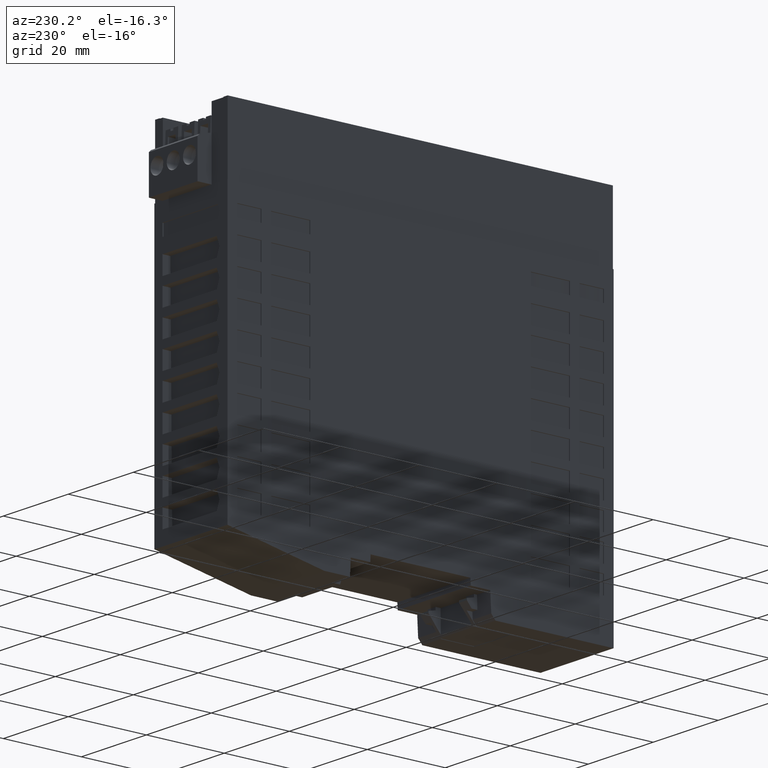
[diagram: clean part render]
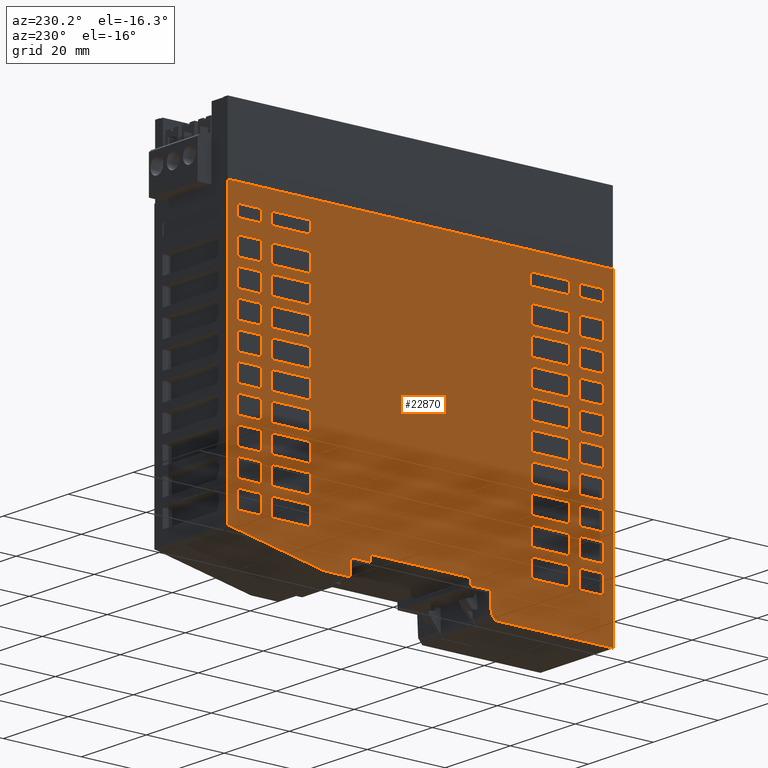
[diagram: same view with one face highlighted and labeled with its STEP entity id]
A machine part, auxiliary view. The second image highlights one B-rep face of the part: STEP entity #22870.
In plain terms, the highlighted planar face has unit normal (-1, 0, 0).
Its self-contained STEP definition (entity closure, byte-faithful):
#8080=CARTESIAN_POINT('',(11.25,71.8,-49.5));
#8090=DIRECTION('',(1.,0.,-0.));
#8100=DIRECTION('',(0.,0.,1.));
#8110=AXIS2_PLACEMENT_3D('',#8080,#8090,#8100);
#8120=PLANE('',#8110);
#8130=CARTESIAN_POINT('',(11.25,4.34999999999999,0.));
#8140=DIRECTION('',(0.,0.,-1.));
#8150=VECTOR('',#8140,1.);
#8160=LINE('',#8130,#8150);
#8170=CARTESIAN_POINT('',(11.25,4.34999999999999,47.));
#8180=VERTEX_POINT('',#8170);
#8190=CARTESIAN_POINT('',(11.25,4.34999999999999,40.8));
#8200=VERTEX_POINT('',#8190);
#8210=EDGE_CURVE('',#8180,#8200,#8160,.T.);
#8220=ORIENTED_EDGE('',*,*,#8210,.F.);
#8230=CARTESIAN_POINT('',(11.25,71.8,40.8));
#8240=DIRECTION('',(0.,1.,3.70920615068742E-64));
#8250=VECTOR('',#8240,1.);
#8260=LINE('',#8230,#8250);
#8270=CARTESIAN_POINT('',(11.25,8.84999999999999,40.8));
#8280=VERTEX_POINT('',#8270);
#8290=EDGE_CURVE('',#8200,#8280,#8260,.T.);
#8300=ORIENTED_EDGE('',*,*,#8290,.F.);
#8310=CARTESIAN_POINT('',(11.25,8.84999999999999,0.));
#8320=DIRECTION('',(0.,0.,1.));
#8330=VECTOR('',#8320,1.);
#8340=LINE('',#8310,#8330);
#8350=CARTESIAN_POINT('',(11.25,8.84999999999999,47.));
#8360=VERTEX_POINT('',#8350);
#8370=EDGE_CURVE('',#8280,#8360,#8340,.T.);
#8380=ORIENTED_EDGE('',*,*,#8370,.F.);
#8390=CARTESIAN_POINT('',(11.25,71.8,47.));
#8400=DIRECTION('',(0.,-1.,-3.70920615068742E-64));
#8410=VECTOR('',#8400,1.);
#8420=LINE('',#8390,#8410);
#8430=EDGE_CURVE('',#8360,#8180,#8420,.T.);
#8440=ORIENTED_EDGE('',*,*,#8430,.F.);
#8450=EDGE_LOOP('',(#8440,#8380,#8300,#8220));
#8460=FACE_BOUND('',#8450,.T.);
#8470=CARTESIAN_POINT('',(11.25,71.8,-28.3));
#8480=DIRECTION('',(0.,-1.,-3.70920615068742E-64));
#8490=VECTOR('',#8480,1.);
#8500=LINE('',#8470,#8490);
#8510=CARTESIAN_POINT('',(11.25,47.85,-28.3));
#8520=VERTEX_POINT('',#8510);
#8530=CARTESIAN_POINT('',(11.25,43.35,-28.3));
#8540=VERTEX_POINT('',#8530);
#8550=EDGE_CURVE('',#8520,#8540,#8500,.T.);
#8560=ORIENTED_EDGE('',*,*,#8550,.F.);
#8570=CARTESIAN_POINT('',(11.25,43.35,0.));
#8580=DIRECTION('',(0.,0.,-1.));
#8590=VECTOR('',#8580,1.);
#8600=LINE('',#8570,#8590);
#8610=CARTESIAN_POINT('',(11.25,43.35,-38.3));
#8620=VERTEX_POINT('',#8610);
#8630=EDGE_CURVE('',#8540,#8620,#8600,.T.);
#8640=ORIENTED_EDGE('',*,*,#8630,.F.);
#8650=CARTESIAN_POINT('',(11.25,71.8,-38.3));
#8660=DIRECTION('',(0.,1.,3.70920615068742E-64));
#8670=VECTOR('',#8660,1.);
#8680=LINE('',#8650,#8670);
#8690=CARTESIAN_POINT('',(11.25,47.85,-38.3));
#8700=VERTEX_POINT('',#8690);
#8710=EDGE_CURVE('',#8620,#8700,#8680,.T.);
#8720=ORIENTED_EDGE('',*,*,#8710,.F.);
#8730=CARTESIAN_POINT('',(11.25,47.85,0.));
#8740=DIRECTION('',(0.,0.,1.));
#8750=VECTOR('',#8740,1.);
#8760=LINE('',#8730,#8750);
#8770=EDGE_CURVE('',#8700,#8520,#8760,.T.);
#8780=ORIENTED_EDGE('',*,*,#8770,.F.);
#8790=EDGE_LOOP('',(#8780,#8720,#8640,#8560));
#8800=FACE_BOUND('',#8790,.T.);
#8810=CARTESIAN_POINT('',(11.25,36.85,0.));
#8820=DIRECTION('',(0.,0.,-1.));
#8830=VECTOR('',#8820,1.);
#8840=LINE('',#8810,#8830);
#8850=CARTESIAN_POINT('',(11.25,36.85,47.));
#8860=VERTEX_POINT('',#8850);
#8870=CARTESIAN_POINT('',(11.25,36.85,40.8));
#8880=VERTEX_POINT('',#8870);
#8890=EDGE_CURVE('',#8860,#8880,#8840,.T.);
#8900=ORIENTED_EDGE('',*,*,#8890,.F.);
#8910=CARTESIAN_POINT('',(11.25,71.8,40.8));
#8920=DIRECTION('',(0.,1.,3.70920615068742E-64));
#8930=VECTOR('',#8920,1.);
#8940=LINE('',#8910,#8930);
#8950=CARTESIAN_POINT('',(11.25,41.35,40.8));
#8960=VERTEX_POINT('',#8950);
#8970=EDGE_CURVE('',#8880,#8960,#8940,.T.);
#8980=ORIENTED_EDGE('',*,*,#8970,.F.);
#8990=CARTESIAN_POINT('',(11.25,41.35,0.));
#9000=DIRECTION('',(0.,0.,1.));
#9010=VECTOR('',#9000,1.);
#9020=LINE('',#8990,#9010);
#9030=CARTESIAN_POINT('',(11.25,41.35,47.));
#9040=VERTEX_POINT('',#9030);
#9050=EDGE_CURVE('',#8960,#9040,#9020,.T.);
#9060=ORIENTED_EDGE('',*,*,#9050,.F.);
#9070=CARTESIAN_POINT('',(11.25,71.8,47.));
#9080=DIRECTION('',(0.,-1.,-3.70920615068742E-64));
#9090=VECTOR('',#9080,1.);
#9100=LINE('',#9070,#9090);
#9110=EDGE_CURVE('',#9040,#8860,#9100,.T.);
#9120=ORIENTED_EDGE('',*,*,#9110,.F.);
#9130=EDGE_LOOP('',(#9120,#9060,#8980,#8900));
#9140=FACE_BOUND('',#9130,.T.);
#9150=CARTESIAN_POINT('',(11.25,71.8,28.3));
#9160=DIRECTION('',(0.,1.,3.70920615068742E-64));
#9170=VECTOR('',#9160,1.);
#9180=LINE('',#9150,#9170);
#9190=CARTESIAN_POINT('',(11.25,17.35,28.3));
#9200=VERTEX_POINT('',#9190);
#9210=CARTESIAN_POINT('',(11.25,21.85,28.3));
#9220=VERTEX_POINT('',#9210);
#9230=EDGE_CURVE('',#9200,#9220,#9180,.T.);
#9240=ORIENTED_EDGE('',*,*,#9230,.F.);
#9250=CARTESIAN_POINT('',(11.25,21.85,0.));
#9260=DIRECTION('',(0.,0.,1.));
#9270=VECTOR('',#9260,1.);
#9280=LINE('',#9250,#9270);
#9290=CARTESIAN_POINT('',(11.25,21.85,38.3));
#9300=VERTEX_POINT('',#9290);
#9310=EDGE_CURVE('',#9220,#9300,#9280,.T.);
#9320=ORIENTED_EDGE('',*,*,#9310,.F.);
#9330=CARTESIAN_POINT('',(11.25,71.8,38.3));
#9340=DIRECTION('',(0.,-1.,-3.70920615068742E-64));
#9350=VECTOR('',#9340,1.);
#9360=LINE('',#9330,#9350);
#9370=CARTESIAN_POINT('',(11.25,17.35,38.3));
#9380=VERTEX_POINT('',#9370);
#9390=EDGE_CURVE('',#9300,#9380,#9360,.T.);
#9400=ORIENTED_EDGE('',*,*,#9390,.F.);
#9410=CARTESIAN_POINT('',(11.25,17.35,0.));
#9420=DIRECTION('',(0.,0.,-1.));
#9430=VECTOR('',#9420,1.);
#9440=LINE('',#9410,#9430);
#9450=EDGE_CURVE('',#9380,#9200,#9440,.T.);
#9460=ORIENTED_EDGE('',*,*,#9450,.F.);
#9470=EDGE_LOOP('',(#9460,#9400,#9320,#9240));
#9480=FACE_BOUND('',#9470,.T.);
#9490=CARTESIAN_POINT('',(11.25,71.8,28.3));
#9500=DIRECTION('',(0.,1.,3.70920615068742E-64));
#9510=VECTOR('',#9500,1.);
#9520=LINE('',#9490,#9510);
#9530=CARTESIAN_POINT('',(11.25,23.85,28.3));
#9540=VERTEX_POINT('',#9530);
#9550=CARTESIAN_POINT('',(11.25,28.35,28.3));
#9560=VERTEX_POINT('',#9550);
#9570=EDGE_CURVE('',#9540,#9560,#9520,.T.);
#9580=ORIENTED_EDGE('',*,*,#9570,.F.);
#9590=CARTESIAN_POINT('',(11.25,28.35,0.));
#9600=DIRECTION('',(0.,0.,1.));
#9610=VECTOR('',#9600,1.);
#9620=LINE('',#9590,#9610);
#9630=CARTESIAN_POINT('',(11.25,28.35,38.3));
#9640=VERTEX_POINT('',#9630);
#9650=EDGE_CURVE('',#9560,#9640,#9620,.T.);
#9660=ORIENTED_EDGE('',*,*,#9650,.F.);
#9670=CARTESIAN_POINT('',(11.25,71.8,38.3));
#9680=DIRECTION('',(0.,-1.,-3.70920615068742E-64));
#9690=VECTOR('',#9680,1.);
#9700=LINE('',#9670,#9690);
#9710=CARTESIAN_POINT('',(11.25,23.85,38.3));
#9720=VERTEX_POINT('',#9710);
#9730=EDGE_CURVE('',#9640,#9720,#9700,.T.);
#9740=ORIENTED_EDGE('',*,*,#9730,.F.);
#9750=CARTESIAN_POINT('',(11.25,23.85,0.));
#9760=DIRECTION('',(0.,0.,-1.));
#9770=VECTOR('',#9760,1.);
#9780=LINE('',#9750,#9770);
#9790=EDGE_CURVE('',#9720,#9540,#9780,.T.);
#9800=ORIENTED_EDGE('',*,*,#9790,.F.);
#9810=EDGE_LOOP('',(#9800,#9740,#9660,#9580));
#9820=FACE_BOUND('',#9810,.T.);
#9830=CARTESIAN_POINT('',(11.25,71.8,40.8));
#9840=DIRECTION('',(0.,1.,3.70920615068742E-64));
#9850=VECTOR('',#9840,1.);
#9860=LINE('',#9830,#9850);
#9870=CARTESIAN_POINT('',(11.25,30.35,40.8));
#9880=VERTEX_POINT('',#9870);
#9890=CARTESIAN_POINT('',(11.25,34.85,40.8));
#9900=VERTEX_POINT('',#9890);
#9910=EDGE_CURVE('',#9880,#9900,#9860,.T.);
#9920=ORIENTED_EDGE('',*,*,#9910,.F.);
#9930=CARTESIAN_POINT('',(11.25,34.85,0.));
#9940=DIRECTION('',(0.,0.,1.));
#9950=VECTOR('',#9940,1.);
#9960=LINE('',#9930,#9950);
#9970=CARTESIAN_POINT('',(11.25,34.85,47.));
#9980=VERTEX_POINT('',#9970);
#9990=EDGE_CURVE('',#9900,#9980,#9960,.T.);
#10000=ORIENTED_EDGE('',*,*,#9990,.F.);
#10010=CARTESIAN_POINT('',(11.25,71.8,47.));
#10020=DIRECTION('',(0.,-1.,-3.70920615068742E-64));
#10030=VECTOR('',#10020,1.);
#10040=LINE('',#10010,#10030);
#10050=CARTESIAN_POINT('',(11.25,30.35,47.));
#10060=VERTEX_POINT('',#10050);
#10070=EDGE_CURVE('',#9980,#10060,#10040,.T.);
#10080=ORIENTED_EDGE('',*,*,#10070,.F.);
#10090=CARTESIAN_POINT('',(11.25,30.35,0.));
#10100=DIRECTION('',(0.,0.,-1.));
#10110=VECTOR('',#10100,1.);
#10120=LINE('',#10090,#10110);
#10130=EDGE_CURVE('',#10060,#9880,#10120,.T.);
#10140=ORIENTED_EDGE('',*,*,#10130,.F.);
#10150=EDGE_LOOP('',(#10140,#10080,#10000,#9920));
#10160=FACE_BOUND('',#10150,.T.);
#10170=CARTESIAN_POINT('',(11.25,67.3,0.));
#10180=DIRECTION('',(0.,0.,1.));
#10190=VECTOR('',#10180,1.);
#10200=LINE('',#10170,#10190);
#10210=CARTESIAN_POINT('',(11.25,67.3,-47.));
#10220=VERTEX_POINT('',#10210);
#10230=CARTESIAN_POINT('',(11.25,67.3,-40.8));
#10240=VERTEX_POINT('',#10230);
#10250=EDGE_CURVE('',#10220,#10240,#10200,.T.);
#10260=ORIENTED_EDGE('',*,*,#10250,.F.);
#10270=CARTESIAN_POINT('',(11.25,71.8,-40.8));
#10280=DIRECTION('',(0.,-1.,-3.70920615068742E-64));
#10290=VECTOR('',#10280,1.);
#10300=LINE('',#10270,#10290);
#10310=CARTESIAN_POINT('',(11.25,64.4,-40.8));
#10320=VERTEX_POINT('',#10310);
#10330=EDGE_CURVE('',#10240,#10320,#10300,.T.);
#10340=ORIENTED_EDGE('',*,*,#10330,.F.);
#10350=CARTESIAN_POINT('',(11.25,64.4,0.));
#10360=DIRECTION('',(0.,0.,-1.));
#10370=VECTOR('',#10360,1.);
#10380=LINE('',#10350,#10370);
#10390=CARTESIAN_POINT('',(11.25,64.4,-47.));
#10400=VERTEX_POINT('',#10390);
#10410=EDGE_CURVE('',#10320,#10400,#10380,.T.);
#10420=ORIENTED_EDGE('',*,*,#10410,.F.);
#10430=CARTESIAN_POINT('',(11.25,71.8,-47.));
#10440=DIRECTION('',(0.,1.,3.70920615068742E-64));
#10450=VECTOR('',#10440,1.);
#10460=LINE('',#10430,#10450);
#10470=EDGE_CURVE('',#10400,#10220,#10460,.T.);
#10480=ORIENTED_EDGE('',*,*,#10470,.F.);
#10490=EDGE_LOOP('',(#10480,#10420,#10340,#10260));
#10500=FACE_BOUND('',#10490,.T.);
#10510=CARTESIAN_POINT('',(11.25,71.8,28.3));
#10520=DIRECTION('',(0.,1.,3.70920615068742E-64));
#10530=VECTOR('',#10520,1.);
#10540=LINE('',#10510,#10530);
#10550=CARTESIAN_POINT('',(11.25,36.85,28.3));
#10560=VERTEX_POINT('',#10550);
#10570=CARTESIAN_POINT('',(11.25,41.35,28.3));
#10580=VERTEX_POINT('',#10570);
#10590=EDGE_CURVE('',#10560,#10580,#10540,.T.);
#10600=ORIENTED_EDGE('',*,*,#10590,.F.);
#10610=CARTESIAN_POINT('',(11.25,41.35,0.));
#10620=DIRECTION('',(0.,0.,1.));
#10630=VECTOR('',#10620,1.);
#10640=LINE('',#10610,#10630);
#10650=CARTESIAN_POINT('',(11.25,41.35,38.3));
#10660=VERTEX_POINT('',#10650);
#10670=EDGE_CURVE('',#10580,#10660,#10640,.T.);
#10680=ORIENTED_EDGE('',*,*,#10670,.F.);
#10690=CARTESIAN_POINT('',(11.25,71.8,38.3));
#10700=DIRECTION('',(0.,-1.,-3.70920615068742E-64));
#10710=VECTOR('',#10700,1.);
#10720=LINE('',#10690,#10710);
#10730=CARTESIAN_POINT('',(11.25,36.85,38.3));
#10740=VERTEX_POINT('',#10730);
#10750=EDGE_CURVE('',#10660,#10740,#10720,.T.);
#10760=ORIENTED_EDGE('',*,*,#10750,.F.);
#10770=CARTESIAN_POINT('',(11.25,36.85,0.));
#10780=DIRECTION('',(0.,0.,-1.));
#10790=VECTOR('',#10780,1.);
#10800=LINE('',#10770,#10790);
#10810=EDGE_CURVE('',#10740,#10560,#10800,.T.);
#10820=ORIENTED_EDGE('',*,*,#10810,.F.);
#10830=EDGE_LOOP('',(#10820,#10760,#10680,#10600));
#10840=FACE_BOUND('',#10830,.T.);
#10850=CARTESIAN_POINT('',(11.25,71.8,-38.3));
#10860=DIRECTION('',(0.,1.,3.70920615068742E-64));
#10870=VECTOR('',#10860,1.);
#10880=LINE('',#10850,#10870);
#10890=CARTESIAN_POINT('',(11.25,56.35,-38.3));
#10900=VERTEX_POINT('',#10890);
#10910=CARTESIAN_POINT('',(11.25,60.85,-38.3));
#10920=VERTEX_POINT('',#10910);
#10930=EDGE_CURVE('',#10900,#10920,#10880,.T.);
#10940=ORIENTED_EDGE('',*,*,#10930,.F.);
#10950=CARTESIAN_POINT('',(11.25,60.85,0.));
#10960=DIRECTION('',(0.,0.,1.));
#10970=VECTOR('',#10960,1.);
#10980=LINE('',#10950,#10970);
#10990=CARTESIAN_POINT('',(11.25,60.85,-28.3));
#11000=VERTEX_POINT('',#10990);
#11010=EDGE_CURVE('',#10920,#11000,#10980,.T.);
#11020=ORIENTED_EDGE('',*,*,#11010,.F.);
#11030=CARTESIAN_POINT('',(11.25,71.8,-28.3));
#11040=DIRECTION('',(0.,-1.,-3.70920615068742E-64));
#11050=VECTOR('',#11040,1.);
#11060=LINE('',#11030,#11050);
#11070=CARTESIAN_POINT('',(11.25,56.35,-28.3));
#11080=VERTEX_POINT('',#11070);
#11090=EDGE_CURVE('',#11000,#11080,#11060,.T.);
#11100=ORIENTED_EDGE('',*,*,#11090,.F.);
#11110=CARTESIAN_POINT('',(11.25,56.35,0.));
#11120=DIRECTION('',(0.,0.,-1.));
#11130=VECTOR('',#11120,1.);
#11140=LINE('',#11110,#11130);
#11150=EDGE_CURVE('',#11080,#10900,#11140,.T.);
#11160=ORIENTED_EDGE('',*,*,#11150,.F.);
#11170=EDGE_LOOP('',(#11160,#11100,#11020,#10940));
#11180=FACE_BOUND('',#11170,.T.);
#11190=CARTESIAN_POINT('',(11.25,34.85,0.));
#11200=DIRECTION('',(0.,0.,1.));
#11210=VECTOR('',#11200,1.);
#11220=LINE('',#11190,#11210);
#11230=CARTESIAN_POINT('',(11.25,34.85,-47.));
#11240=VERTEX_POINT('',#11230);
#11250=CARTESIAN_POINT('',(11.25,34.85,-40.8));
#11260=VERTEX_POINT('',#11250);
#11270=EDGE_CURVE('',#11240,#11260,#11220,.T.);
#11280=ORIENTED_EDGE('',*,*,#11270,.F.);
#11290=CARTESIAN_POINT('',(11.25,71.8,-40.8));
#11300=DIRECTION('',(0.,-1.,-3.70920615068742E-64));
#11310=VECTOR('',#11300,1.);
#11320=LINE('',#11290,#11310);
#11330=CARTESIAN_POINT('',(11.25,30.35,-40.8));
#11340=VERTEX_POINT('',#11330);
#11350=EDGE_CURVE('',#11260,#11340,#11320,.T.);
#11360=ORIENTED_EDGE('',*,*,#11350,.F.);
#11370=CARTESIAN_POINT('',(11.25,30.35,0.));
#11380=DIRECTION('',(0.,0.,-1.));
#11390=VECTOR('',#11380,1.);
#11400=LINE('',#11370,#11390);
#11410=CARTESIAN_POINT('',(11.25,30.35,-47.));
#11420=VERTEX_POINT('',#11410);
#11430=EDGE_CURVE('',#11340,#11420,#11400,.T.);
#11440=ORIENTED_EDGE('',*,*,#11430,.F.);
#11450=CARTESIAN_POINT('',(11.25,71.8,-47.));
#11460=DIRECTION('',(0.,1.,3.70920615068742E-64));
#11470=VECTOR('',#11460,1.);
#11480=LINE('',#11450,#11470);
#11490=EDGE_CURVE('',#11420,#11240,#11480,.T.);
#11500=ORIENTED_EDGE('',*,*,#11490,.F.);
#11510=EDGE_LOOP('',(#11500,#11440,#11360,#11280));
#11520=FACE_BOUND('',#11510,.T.);
#11530=CARTESIAN_POINT('',(11.25,71.8,47.));
#11540=DIRECTION('',(0.,-1.,-3.70920615068742E-64));
#11550=VECTOR('',#11540,1.);
#11560=LINE('',#11530,#11550);
#11570=CARTESIAN_POINT('',(11.25,47.85,47.));
#11580=VERTEX_POINT('',#11570);
#11590=CARTESIAN_POINT('',(11.25,43.35,47.));
#11600=VERTEX_POINT('',#11590);
#11610=EDGE_CURVE('',#11580,#11600,#11560,.T.);
#11620=ORIENTED_EDGE('',*,*,#11610,.F.);
#11630=CARTESIAN_POINT('',(11.25,43.35,0.));
#11640=DIRECTION('',(0.,0.,-1.));
#11650=VECTOR('',#11640,1.);
#11660=LINE('',#11630,#11650);
#11670=CARTESIAN_POINT('',(11.25,43.35,40.8));
#11680=VERTEX_POINT('',#11670);
#11690=EDGE_CURVE('',#11600,#11680,#11660,.T.);
#11700=ORIENTED_EDGE('',*,*,#11690,.F.);
#11710=CARTESIAN_POINT('',(11.25,71.8,40.8));
#11720=DIRECTION('',(0.,1.,3.70920615068742E-64));
#11730=VECTOR('',#11720,1.);
#11740=LINE('',#11710,#11730);
#11750=CARTESIAN_POINT('',(11.25,47.85,40.8));
#11760=VERTEX_POINT('',#11750);
#11770=EDGE_CURVE('',#11680,#11760,#11740,.T.);
#11780=ORIENTED_EDGE('',*,*,#11770,.F.);
#11790=CARTESIAN_POINT('',(11.25,47.85,0.));
#11800=DIRECTION('',(0.,0.,1.));
#11810=VECTOR('',#11800,1.);
#11820=LINE('',#11790,#11810);
#11830=EDGE_CURVE('',#11760,#11580,#11820,.T.);
#11840=ORIENTED_EDGE('',*,*,#11830,.F.);
#11850=EDGE_LOOP('',(#11840,#11780,#11700,#11620));
#11860=FACE_BOUND('',#11850,.T.);
#11870=CARTESIAN_POINT('',(11.25,71.8,28.3));
#11880=DIRECTION('',(0.,1.,3.70920615068742E-64));
#11890=VECTOR('',#11880,1.);
#11900=LINE('',#11870,#11890);
#11910=CARTESIAN_POINT('',(11.25,4.34999999999999,28.3));
#11920=VERTEX_POINT('',#11910);
#11930=CARTESIAN_POINT('',(11.25,8.84999999999999,28.3));
#11940=VERTEX_POINT('',#11930);
#11950=EDGE_CURVE('',#11920,#11940,#11900,.T.);
#11960=ORIENTED_EDGE('',*,*,#11950,.F.);
#11970=CARTESIAN_POINT('',(11.25,8.84999999999999,0.));
#11980=DIRECTION('',(0.,0.,1.));
#11990=VECTOR('',#11980,1.);
#12000=LINE('',#11970,#11990);
#12010=CARTESIAN_POINT('',(11.25,8.84999999999999,38.3));
#12020=VERTEX_POINT('',#12010);
#12030=EDGE_CURVE('',#11940,#12020,#12000,.T.);
#12040=ORIENTED_EDGE('',*,*,#12030,.F.);
#12050=CARTESIAN_POINT('',(11.25,71.8,38.3));
#12060=DIRECTION('',(0.,-1.,-3.70920615068742E-64));
#12070=VECTOR('',#12060,1.);
#12080=LINE('',#12050,#12070);
#12090=CARTESIAN_POINT('',(11.25,4.34999999999999,38.3));
#12100=VERTEX_POINT('',#12090);
#12110=EDGE_CURVE('',#12020,#12100,#12080,.T.);
#12120=ORIENTED_EDGE('',*,*,#12110,.F.);
#12130=CARTESIAN_POINT('',(11.25,4.34999999999999,0.));
#12140=DIRECTION('',(0.,0.,-1.));
#12150=VECTOR('',#12140,1.);
#12160=LINE('',#12130,#12150);
#12170=EDGE_CURVE('',#12100,#11920,#12160,.T.);
#12180=ORIENTED_EDGE('',*,*,#12170,.F.);
#12190=EDGE_LOOP('',(#12180,#12120,#12040,#11960));
#12200=FACE_BOUND('',#12190,.T.);
#12210=CARTESIAN_POINT('',(11.25,71.8,-47.));
#12220=DIRECTION('',(0.,1.,3.70920615068742E-64));
#12230=VECTOR('',#12220,1.);
#12240=LINE('',#12210,#12230);
#12250=CARTESIAN_POINT('',(11.25,36.85,-47.));
#12260=VERTEX_POINT('',#12250);
#12270=CARTESIAN_POINT('',(11.25,41.35,-47.));
#12280=VERTEX_POINT('',#12270);
#12290=EDGE_CURVE('',#12260,#12280,#12240,.T.);
#12300=ORIENTED_EDGE('',*,*,#12290,.F.);
#12310=CARTESIAN_POINT('',(11.25,41.35,0.));
#12320=DIRECTION('',(0.,0.,1.));
#12330=VECTOR('',#12320,1.);
#12340=LINE('',#12310,#12330);
#12350=CARTESIAN_POINT('',(11.25,41.35,-40.8));
#12360=VERTEX_POINT('',#12350);
#12370=EDGE_CURVE('',#12280,#12360,#12340,.T.);
#12380=ORIENTED_EDGE('',*,*,#12370,.F.);
#12390=CARTESIAN_POINT('',(11.25,71.8,-40.8));
#12400=DIRECTION('',(0.,-1.,-3.70920615068742E-64));
#12410=VECTOR('',#12400,1.);
#12420=LINE('',#12390,#12410);
#12430=CARTESIAN_POINT('',(11.25,36.85,-40.8));
#12440=VERTEX_POINT('',#12430);
#12450=EDGE_CURVE('',#12360,#12440,#12420,.T.);
#12460=ORIENTED_EDGE('',*,*,#12450,.F.);
#12470=CARTESIAN_POINT('',(11.25,36.85,0.));
#12480=DIRECTION('',(0.,0.,-1.));
#12490=VECTOR('',#12480,1.);
#12500=LINE('',#12470,#12490);
#12510=EDGE_CURVE('',#12440,#12260,#12500,.T.);
#12520=ORIENTED_EDGE('',*,*,#12510,.F.);
#12530=EDGE_LOOP('',(#12520,#12460,#12380,#12300));
#12540=FACE_BOUND('',#12530,.T.);
#12550=CARTESIAN_POINT('',(11.25,71.8,-38.3));
#12560=DIRECTION('',(0.,1.,3.70920615068742E-64));
#12570=VECTOR('',#12560,1.);
#12580=LINE('',#12550,#12570);
#12590=CARTESIAN_POINT('',(11.25,36.85,-38.3));
#12600=VERTEX_POINT('',#12590);
#12610=CARTESIAN_POINT('',(11.25,41.35,-38.3));
#12620=VERTEX_POINT('',#12610);
#12630=EDGE_CURVE('',#12600,#12620,#12580,.T.);
#12640=ORIENTED_EDGE('',*,*,#12630,.F.);
#12650=CARTESIAN_POINT('',(11.25,41.35,0.));
#12660=DIRECTION('',(0.,0.,1.));
#12670=VECTOR('',#12660,1.);
#12680=LINE('',#12650,#12670);
#12690=CARTESIAN_POINT('',(11.25,41.35,-28.3));
#12700=VERTEX_POINT('',#12690);
#12710=EDGE_CURVE('',#12620,#12700,#12680,.T.);
#12720=ORIENTED_EDGE('',*,*,#12710,.F.);
#12730=CARTESIAN_POINT('',(11.25,71.8,-28.3));
#12740=DIRECTION('',(0.,-1.,-3.70920615068742E-64));
#12750=VECTOR('',#12740,1.);
#12760=LINE('',#12730,#12750);
#12770=CARTESIAN_POINT('',(11.25,36.85,-28.3));
#12780=VERTEX_POINT('',#12770);
#12790=EDGE_CURVE('',#12700,#12780,#12760,.T.);
#12800=ORIENTED_EDGE('',*,*,#12790,.F.);
#12810=CARTESIAN_POINT('',(11.25,36.85,0.));
#12820=DIRECTION('',(0.,0.,-1.));
#12830=VECTOR('',#12820,1.);
#12840=LINE('',#12810,#12830);
#12850=EDGE_CURVE('',#12780,#12600,#12840,.T.);
#12860=ORIENTED_EDGE('',*,*,#12850,.F.);
#12870=EDGE_LOOP('',(#12860,#12800,#12720,#12640));
#12880=FACE_BOUND('',#12870,.T.);
#12890=CARTESIAN_POINT('',(11.25,71.8,28.3));
#12900=DIRECTION('',(0.,1.,3.70920615068742E-64));
#12910=VECTOR('',#12900,1.);
#12920=LINE('',#12890,#12910);
#12930=CARTESIAN_POINT('',(11.25,10.85,28.3));
#12940=VERTEX_POINT('',#12930);
#12950=CARTESIAN_POINT('',(11.25,15.35,28.3));
#12960=VERTEX_POINT('',#12950);
#12970=EDGE_CURVE('',#12940,#12960,#12920,.T.);
#12980=ORIENTED_EDGE('',*,*,#12970,.F.);
#12990=CARTESIAN_POINT('',(11.25,15.35,0.));
#13000=DIRECTION('',(0.,0.,1.));
#13010=VECTOR('',#13000,1.);
#13020=LINE('',#12990,#13010);
#13030=CARTESIAN_POINT('',(11.25,15.35,38.3));
#13040=VERTEX_POINT('',#13030);
#13050=EDGE_CURVE('',#12960,#13040,#13020,.T.);
#13060=ORIENTED_EDGE('',*,*,#13050,.F.);
#13070=CARTESIAN_POINT('',(11.25,71.8,38.3));
#13080=DIRECTION('',(0.,-1.,-3.70920615068742E-64));
#13090=VECTOR('',#13080,1.);
#13100=LINE('',#13070,#13090);
#13110=CARTESIAN_POINT('',(11.25,10.85,38.3));
#13120=VERTEX_POINT('',#13110);
#13130=EDGE_CURVE('',#13040,#13120,#13100,.T.);
#13140=ORIENTED_EDGE('',*,*,#13130,.F.);
#13150=CARTESIAN_POINT('',(11.25,10.85,0.));
#13160=DIRECTION('',(0.,0.,-1.));
#13170=VECTOR('',#13160,1.);
#13180=LINE('',#13150,#13170);
#13190=EDGE_CURVE('',#13120,#12940,#13180,.T.);
#13200=ORIENTED_EDGE('',*,*,#13190,.F.);
#13210=EDGE_LOOP('',(#13200,#13140,#13060,#12980));
#13220=FACE_BOUND('',#13210,.T.);
#13230=CARTESIAN_POINT('',(11.25,8.84999999999999,0.));
#13240=DIRECTION('',(0.,0.,1.));
#13250=VECTOR('',#13240,1.);
#13260=LINE('',#13230,#13250);
#13270=CARTESIAN_POINT('',(11.25,8.84999999999999,-47.));
#13280=VERTEX_POINT('',#13270);
#13290=CARTESIAN_POINT('',(11.25,8.84999999999999,-40.8));
#13300=VERTEX_POINT('',#13290);
#13310=EDGE_CURVE('',#13280,#13300,#13260,.T.);
#13320=ORIENTED_EDGE('',*,*,#13310,.F.);
#13330=CARTESIAN_POINT('',(11.25,71.8,-40.8));
#13340=DIRECTION('',(0.,-1.,-3.70920615068742E-64));
#13350=VECTOR('',#13340,1.);
#13360=LINE('',#13330,#13350);
#13370=CARTESIAN_POINT('',(11.25,4.34999999999999,-40.8));
#13380=VERTEX_POINT('',#13370);
#13390=EDGE_CURVE('',#13300,#13380,#13360,.T.);
#13400=ORIENTED_EDGE('',*,*,#13390,.F.);
#13410=CARTESIAN_POINT('',(11.25,4.34999999999999,0.));
#13420=DIRECTION('',(0.,0.,-1.));
#13430=VECTOR('',#13420,1.);
#13440=LINE('',#13410,#13430);
#13450=CARTESIAN_POINT('',(11.25,4.34999999999999,-47.));
#13460=VERTEX_POINT('',#13450);
#13470=EDGE_CURVE('',#13380,#13460,#13440,.T.);
#13480=ORIENTED_EDGE('',*,*,#13470,.F.);
#13490=CARTESIAN_POINT('',(11.25,71.8,-47.));
#13500=DIRECTION('',(0.,1.,3.70920615068742E-64));
#13510=VECTOR('',#13500,1.);
#13520=LINE('',#13490,#13510);
#13530=EDGE_CURVE('',#13460,#13280,#13520,.T.);
#13540=ORIENTED_EDGE('',*,*,#13530,.F.);
#13550=EDGE_LOOP('',(#13540,#13480,#13400,#13320));
#13560=FACE_BOUND('',#13550,.T.);
#13570=CARTESIAN_POINT('',(11.25,17.35,0.));
#13580=DIRECTION('',(0.,0.,-1.));
#13590=VECTOR('',#13580,1.);
#13600=LINE('',#13570,#13590);
#13610=CARTESIAN_POINT('',(11.25,17.35,-40.8));
#13620=VERTEX_POINT('',#13610);
#13630=CARTESIAN_POINT('',(11.25,17.35,-47.));
#13640=VERTEX_POINT('',#13630);
#13650=EDGE_CURVE('',#13620,#13640,#13600,.T.);
#13660=ORIENTED_EDGE('',*,*,#13650,.F.);
#13670=CARTESIAN_POINT('',(11.25,71.8,-47.));
#13680=DIRECTION('',(0.,1.,3.70920615068742E-64));
#13690=VECTOR('',#13680,1.);
#13700=LINE('',#13670,#13690);
#13710=CARTESIAN_POINT('',(11.25,21.85,-47.));
#13720=VERTEX_POINT('',#13710);
#13730=EDGE_CURVE('',#13640,#13720,#13700,.T.);
#13740=ORIENTED_EDGE('',*,*,#13730,.F.);
#13750=CARTESIAN_POINT('',(11.25,21.85,0.));
#13760=DIRECTION('',(0.,0.,1.));
#13770=VECTOR('',#13760,1.);
#13780=LINE('',#13750,#13770);
#13790=CARTESIAN_POINT('',(11.25,21.85,-40.8));
#13800=VERTEX_POINT('',#13790);
#13810=EDGE_CURVE('',#13720,#13800,#13780,.T.);
#13820=ORIENTED_EDGE('',*,*,#13810,.F.);
#13830=CARTESIAN_POINT('',(11.25,71.8,-40.8));
#13840=DIRECTION('',(0.,-1.,-3.70920615068742E-64));
#13850=VECTOR('',#13840,1.);
#13860=LINE('',#13830,#13850);
#13870=EDGE_CURVE('',#13800,#13620,#13860,.T.);
#13880=ORIENTED_EDGE('',*,*,#13870,.F.);
#13890=EDGE_LOOP('',(#13880,#13820,#13740,#13660));
#13900=FACE_BOUND('',#13890,.T.);
#13910=CARTESIAN_POINT('',(11.25,15.35,0.));
#13920=DIRECTION('',(0.,0.,1.));
#13930=VECTOR('',#13920,1.);
#13940=LINE('',#13910,#13930);
#13950=CARTESIAN_POINT('',(11.25,15.35,-47.));
#13960=VERTEX_POINT('',#13950);
#13970=CARTESIAN_POINT('',(11.25,15.35,-40.8));
#13980=VERTEX_POINT('',#13970);
#13990=EDGE_CURVE('',#13960,#13980,#13940,.T.);
#14000=ORIENTED_EDGE('',*,*,#13990,.F.);
#14010=CARTESIAN_POINT('',(11.25,71.8,-40.8));
#14020=DIRECTION('',(0.,-1.,-3.70920615068742E-64));
#14030=VECTOR('',#14020,1.);
#14040=LINE('',#14010,#14030);
#14050=CARTESIAN_POINT('',(11.25,10.85,-40.8));
#14060=VERTEX_POINT('',#14050);
#14070=EDGE_CURVE('',#13980,#14060,#14040,.T.);
#14080=ORIENTED_EDGE('',*,*,#14070,.F.);
#14090=CARTESIAN_POINT('',(11.25,10.85,0.));
#14100=DIRECTION('',(0.,0.,-1.));
#14110=VECTOR('',#14100,1.);
#14120=LINE('',#14090,#14110);
#14130=CARTESIAN_POINT('',(11.25,10.85,-47.));
#14140=VERTEX_POINT('',#14130);
#14150=EDGE_CURVE('',#14060,#14140,#14120,.T.);
#14160=ORIENTED_EDGE('',*,*,#14150,.F.);
#14170=CARTESIAN_POINT('',(11.25,71.8,-47.));
#14180=DIRECTION('',(0.,1.,3.70920615068742E-64));
#14190=VECTOR('',#14180,1.);
#14200=LINE('',#14170,#14190);
#14210=EDGE_CURVE('',#14140,#13960,#14200,.T.);
#14220=ORIENTED_EDGE('',*,*,#14210,.F.);
#14230=EDGE_LOOP('',(#14220,#14160,#14080,#14000));
#14240=FACE_BOUND('',#14230,.T.);
#14250=CARTESIAN_POINT('',(11.25,71.8,-47.));
#14260=DIRECTION('',(0.,1.,3.70920615068742E-64));
#14270=VECTOR('',#14260,1.);
#14280=LINE('',#14250,#14270);
#14290=CARTESIAN_POINT('',(11.25,49.85,-47.));
#14300=VERTEX_POINT('',#14290);
#14310=CARTESIAN_POINT('',(11.25,54.35,-47.));
#14320=VERTEX_POINT('',#14310);
#14330=EDGE_CURVE('',#14300,#14320,#14280,.T.);
#14340=ORIENTED_EDGE('',*,*,#14330,.F.);
#14350=CARTESIAN_POINT('',(11.25,54.35,0.));
#14360=DIRECTION('',(0.,0.,1.));
#14370=VECTOR('',#14360,1.);
#14380=LINE('',#14350,#14370);
#14390=CARTESIAN_POINT('',(11.25,54.35,-40.8));
#14400=VERTEX_POINT('',#14390);
#14410=EDGE_CURVE('',#14320,#14400,#14380,.T.);
#14420=ORIENTED_EDGE('',*,*,#14410,.F.);
#14430=CARTESIAN_POINT('',(11.25,71.8,-40.8));
#14440=DIRECTION('',(0.,-1.,-3.70920615068742E-64));
#14450=VECTOR('',#14440,1.);
#14460=LINE('',#14430,#14450);
#14470=CARTESIAN_POINT('',(11.25,49.85,-40.8));
#14480=VERTEX_POINT('',#14470);
#14490=EDGE_CURVE('',#14400,#14480,#14460,.T.);
#14500=ORIENTED_EDGE('',*,*,#14490,.F.);
#14510=CARTESIAN_POINT('',(11.25,49.85,0.));
#14520=DIRECTION('',(0.,0.,-1.));
#14530=VECTOR('',#14520,1.);
#14540=LINE('',#14510,#14530);
#14550=EDGE_CURVE('',#14480,#14300,#14540,.T.);
#14560=ORIENTED_EDGE('',*,*,#14550,.F.);
#14570=EDGE_LOOP('',(#14560,#14500,#14420,#14340));
#14580=FACE_BOUND('',#14570,.T.);
#14590=CARTESIAN_POINT('',(11.25,71.8,-38.3));
#14600=DIRECTION('',(0.,1.,3.70920615068742E-64));
#14610=VECTOR('',#14600,1.);
#14620=LINE('',#14590,#14610);
#14630=CARTESIAN_POINT('',(11.25,17.35,-38.3));
#14640=VERTEX_POINT('',#14630);
#14650=CARTESIAN_POINT('',(11.25,21.85,-38.3));
#14660=VERTEX_POINT('',#14650);
#14670=EDGE_CURVE('',#14640,#14660,#14620,.T.);
#14680=ORIENTED_EDGE('',*,*,#14670,.F.);
#14690=CARTESIAN_POINT('',(11.25,21.85,0.));
#14700=DIRECTION('',(0.,0.,1.));
#14710=VECTOR('',#14700,1.);
#14720=LINE('',#14690,#14710);
#14730=CARTESIAN_POINT('',(11.25,21.85,-28.3));
#14740=VERTEX_POINT('',#14730);
#14750=EDGE_CURVE('',#14660,#14740,#14720,.T.);
#14760=ORIENTED_EDGE('',*,*,#14750,.F.);
#14770=CARTESIAN_POINT('',(11.25,71.8,-28.3));
#14780=DIRECTION('',(0.,-1.,-3.70920615068742E-64));
#14790=VECTOR('',#14780,1.);
#14800=LINE('',#14770,#14790);
#14810=CARTESIAN_POINT('',(11.25,17.35,-28.3));
#14820=VERTEX_POINT('',#14810);
#14830=EDGE_CURVE('',#14740,#14820,#14800,.T.);
#14840=ORIENTED_EDGE('',*,*,#14830,.F.);
#14850=CARTESIAN_POINT('',(11.25,17.35,0.));
#14860=DIRECTION('',(0.,0.,-1.));
#14870=VECTOR('',#14860,1.);
#14880=LINE('',#14850,#14870);
#14890=EDGE_CURVE('',#14820,#14640,#14880,.T.);
#14900=ORIENTED_EDGE('',*,*,#14890,.F.);
#14910=EDGE_LOOP('',(#14900,#14840,#14760,#14680));
#14920=FACE_BOUND('',#14910,.T.);
#14930=CARTESIAN_POINT('',(11.25,71.8,-38.3));
#14940=DIRECTION('',(0.,1.,3.70920615068742E-64));
#14950=VECTOR('',#14940,1.);
#14960=LINE('',#14930,#14950);
#14970=CARTESIAN_POINT('',(11.25,10.85,-38.3));
#14980=VERTEX_POINT('',#14970);
#14990=CARTESIAN_POINT('',(11.25,15.35,-38.3));
#15000=VERTEX_POINT('',#14990);
#15010=EDGE_CURVE('',#14980,#15000,#14960,.T.);
#15020=ORIENTED_EDGE('',*,*,#15010,.F.);
#15030=CARTESIAN_POINT('',(11.25,15.35,0.));
#15040=DIRECTION('',(0.,0.,1.));
#15050=VECTOR('',#15040,1.);
#15060=LINE('',#15030,#15050);
#15070=CARTESIAN_POINT('',(11.25,15.35,-28.3));
#15080=VERTEX_POINT('',#15070);
#15090=EDGE_CURVE('',#15000,#15080,#15060,.T.);
#15100=ORIENTED_EDGE('',*,*,#15090,.F.);
#15110=CARTESIAN_POINT('',(11.25,71.8,-28.3));
#15120=DIRECTION('',(0.,-1.,-3.70920615068742E-64));
#15130=VECTOR('',#15120,1.);
#15140=LINE('',#15110,#15130);
#15150=CARTESIAN_POINT('',(11.25,10.85,-28.3));
#15160=VERTEX_POINT('',#15150);
#15170=EDGE_CURVE('',#15080,#15160,#15140,.T.);
#15180=ORIENTED_EDGE('',*,*,#15170,.F.);
#15190=CARTESIAN_POINT('',(11.25,10.85,0.));
#15200=DIRECTION('',(0.,0.,-1.));
#15210=VECTOR('',#15200,1.);
#15220=LINE('',#15190,#15210);
#15230=EDGE_CURVE('',#15160,#14980,#15220,.T.);
#15240=ORIENTED_EDGE('',*,*,#15230,.F.);
#15250=EDGE_LOOP('',(#15240,#15180,#15100,#15020));
#15260=FACE_BOUND('',#15250,.T.);
#15270=CARTESIAN_POINT('',(11.25,71.8,-47.));
#15280=DIRECTION('',(0.,1.,3.70920615068742E-64));
#15290=VECTOR('',#15280,1.);
#15300=LINE('',#15270,#15290);
#15310=CARTESIAN_POINT('',(11.25,23.85,-47.));
#15320=VERTEX_POINT('',#15310);
#15330=CARTESIAN_POINT('',(11.25,28.35,-47.));
#15340=VERTEX_POINT('',#15330);
#15350=EDGE_CURVE('',#15320,#15340,#15300,.T.);
#15360=ORIENTED_EDGE('',*,*,#15350,.F.);
#15370=CARTESIAN_POINT('',(11.25,28.35,0.));
#15380=DIRECTION('',(0.,0.,1.));
#15390=VECTOR('',#15380,1.);
#15400=LINE('',#15370,#15390);
#15410=CARTESIAN_POINT('',(11.25,28.35,-40.8));
#15420=VERTEX_POINT('',#15410);
#15430=EDGE_CURVE('',#15340,#15420,#15400,.T.);
#15440=ORIENTED_EDGE('',*,*,#15430,.F.);
#15450=CARTESIAN_POINT('',(11.25,71.8,-40.8));
#15460=DIRECTION('',(0.,-1.,-3.70920615068742E-64));
#15470=VECTOR('',#15460,1.);
#15480=LINE('',#15450,#15470);
#15490=CARTESIAN_POINT('',(11.25,23.85,-40.8));
#15500=VERTEX_POINT('',#15490);
#15510=EDGE_CURVE('',#15420,#15500,#15480,.T.);
#15520=ORIENTED_EDGE('',*,*,#15510,.F.);
#15530=CARTESIAN_POINT('',(11.25,23.85,0.));
#15540=DIRECTION('',(0.,0.,-1.));
#15550=VECTOR('',#15540,1.);
#15560=LINE('',#15530,#15550);
#15570=EDGE_CURVE('',#15500,#15320,#15560,.T.);
#15580=ORIENTED_EDGE('',*,*,#15570,.F.);
#15590=EDGE_LOOP('',(#15580,#15520,#15440,#15360));
#15600=FACE_BOUND('',#15590,.T.);
#15610=CARTESIAN_POINT('',(11.25,71.8,47.));
#15620=DIRECTION('',(0.,-1.,-3.70920615068742E-64));
#15630=VECTOR('',#15620,1.);
#15640=LINE('',#15610,#15630);
#15650=CARTESIAN_POINT('',(11.25,54.35,47.));
#15660=VERTEX_POINT('',#15650);
#15670=CARTESIAN_POINT('',(11.25,49.85,47.));
#15680=VERTEX_POINT('',#15670);
#15690=EDGE_CURVE('',#15660,#15680,#15640,.T.);
#15700=ORIENTED_EDGE('',*,*,#15690,.F.);
#15710=CARTESIAN_POINT('',(11.25,49.85,0.));
#15720=DIRECTION('',(0.,0.,-1.));
#15730=VECTOR('',#15720,1.);
#15740=LINE('',#15710,#15730);
#15750=CARTESIAN_POINT('',(11.25,49.85,40.8));
#15760=VERTEX_POINT('',#15750);
#15770=EDGE_CURVE('',#15680,#15760,#15740,.T.);
#15780=ORIENTED_EDGE('',*,*,#15770,.F.);
#15790=CARTESIAN_POINT('',(11.25,71.8,40.8));
#15800=DIRECTION('',(0.,1.,3.70920615068742E-64));
#15810=VECTOR('',#15800,1.);
#15820=LINE('',#15790,#15810);
#15830=CARTESIAN_POINT('',(11.25,54.35,40.8));
#15840=VERTEX_POINT('',#15830);
#15850=EDGE_CURVE('',#15760,#15840,#15820,.T.);
#15860=ORIENTED_EDGE('',*,*,#15850,.F.);
#15870=CARTESIAN_POINT('',(11.25,54.35,0.));
#15880=DIRECTION('',(0.,0.,1.));
#15890=VECTOR('',#15880,1.);
#15900=LINE('',#15870,#15890);
#15910=EDGE_CURVE('',#15840,#15660,#15900,.T.);
#15920=ORIENTED_EDGE('',*,*,#15910,.F.);
#15930=EDGE_LOOP('',(#15920,#15860,#15780,#15700));
#15940=FACE_BOUND('',#15930,.T.);
#15950=CARTESIAN_POINT('',(11.25,71.8,38.3));
#15960=DIRECTION('',(0.,-1.,-3.70920615068742E-64));
#15970=VECTOR('',#15960,1.);
#15980=LINE('',#15950,#15970);
#15990=CARTESIAN_POINT('',(11.25,47.85,38.3));
#16000=VERTEX_POINT('',#15990);
#16010=CARTESIAN_POINT('',(11.25,43.35,38.3));
#16020=VERTEX_POINT('',#16010);
#16030=EDGE_CURVE('',#16000,#16020,#15980,.T.);
#16040=ORIENTED_EDGE('',*,*,#16030,.F.);
#16050=CARTESIAN_POINT('',(11.25,43.35,0.));
#16060=DIRECTION('',(0.,0.,-1.));
#16070=VECTOR('',#16060,1.);
#16080=LINE('',#16050,#16070);
#16090=CARTESIAN_POINT('',(11.25,43.35,28.3));
#16100=VERTEX_POINT('',#16090);
#16110=EDGE_CURVE('',#16020,#16100,#16080,.T.);
#16120=ORIENTED_EDGE('',*,*,#16110,.F.);
#16130=CARTESIAN_POINT('',(11.25,71.8,28.3));
#16140=DIRECTION('',(0.,1.,3.70920615068742E-64));
#16150=VECTOR('',#16140,1.);
#16160=LINE('',#16130,#16150);
#16170=CARTESIAN_POINT('',(11.25,47.85,28.3));
#16180=VERTEX_POINT('',#16170);
#16190=EDGE_CURVE('',#16100,#16180,#16160,.T.);
#16200=ORIENTED_EDGE('',*,*,#16190,.F.);
#16210=CARTESIAN_POINT('',(11.25,47.85,0.));
#16220=DIRECTION('',(0.,0.,1.));
#16230=VECTOR('',#16220,1.);
#16240=LINE('',#16210,#16230);
#16250=EDGE_CURVE('',#16180,#16000,#16240,.T.);
#16260=ORIENTED_EDGE('',*,*,#16250,.F.);
#16270=EDGE_LOOP('',(#16260,#16200,#16120,#16040));
#16280=FACE_BOUND('',#16270,.T.);
#16290=CARTESIAN_POINT('',(11.25,15.35,0.));
#16300=DIRECTION('',(0.,0.,1.));
#16310=VECTOR('',#16300,1.);
#16320=LINE('',#16290,#16310);
#16330=CARTESIAN_POINT('',(11.25,15.35,40.8));
#16340=VERTEX_POINT('',#16330);
#16350=CARTESIAN_POINT('',(11.25,15.35,47.));
#16360=VERTEX_POINT('',#16350);
#16370=EDGE_CURVE('',#16340,#16360,#16320,.T.);
#16380=ORIENTED_EDGE('',*,*,#16370,.F.);
#16390=CARTESIAN_POINT('',(11.25,71.8,47.));
#16400=DIRECTION('',(0.,-1.,-3.70920615068742E-64));
#16410=VECTOR('',#16400,1.);
#16420=LINE('',#16390,#16410);
#16430=CARTESIAN_POINT('',(11.25,10.85,47.));
#16440=VERTEX_POINT('',#16430);
#16450=EDGE_CURVE('',#16360,#16440,#16420,.T.);
#16460=ORIENTED_EDGE('',*,*,#16450,.F.);
#16470=CARTESIAN_POINT('',(11.25,10.85,0.));
#16480=DIRECTION('',(0.,0.,-1.));
#16490=VECTOR('',#16480,1.);
#16500=LINE('',#16470,#16490);
#16510=CARTESIAN_POINT('',(11.25,10.85,40.8));
#16520=VERTEX_POINT('',#16510);
#16530=EDGE_CURVE('',#16440,#16520,#16500,.T.);
#16540=ORIENTED_EDGE('',*,*,#16530,.F.);
#16550=CARTESIAN_POINT('',(11.25,71.8,40.8));
#16560=DIRECTION('',(0.,1.,3.70920615068742E-64));
#16570=VECTOR('',#16560,1.);
#16580=LINE('',#16550,#16570);
#16590=EDGE_CURVE('',#16520,#16340,#16580,.T.);
#16600=ORIENTED_EDGE('',*,*,#16590,.F.);
#16610=EDGE_LOOP('',(#16600,#16540,#16460,#16380));
#16620=FACE_BOUND('',#16610,.T.);
#16630=CARTESIAN_POINT('',(11.25,17.35,0.));
#16640=DIRECTION('',(0.,0.,-1.));
#16650=VECTOR('',#16640,1.);
#16660=LINE('',#16630,#16650);
#16670=CARTESIAN_POINT('',(11.25,17.35,47.));
#16680=VERTEX_POINT('',#16670);
#16690=CARTESIAN_POINT('',(11.25,17.35,40.8));
#16700=VERTEX_POINT('',#16690);
#16710=EDGE_CURVE('',#16680,#16700,#16660,.T.);
#16720=ORIENTED_EDGE('',*,*,#16710,.F.);
#16730=CARTESIAN_POINT('',(11.25,71.8,40.8));
#16740=DIRECTION('',(0.,1.,3.70920615068742E-64));
#16750=VECTOR('',#16740,1.);
#16760=LINE('',#16730,#16750);
#16770=CARTESIAN_POINT('',(11.25,21.85,40.8));
#16780=VERTEX_POINT('',#16770);
#16790=EDGE_CURVE('',#16700,#16780,#16760,.T.);
#16800=ORIENTED_EDGE('',*,*,#16790,.F.);
#16810=CARTESIAN_POINT('',(11.25,21.85,0.));
#16820=DIRECTION('',(0.,0.,1.));
#16830=VECTOR('',#16820,1.);
#16840=LINE('',#16810,#16830);
#16850=CARTESIAN_POINT('',(11.25,21.85,47.));
#16860=VERTEX_POINT('',#16850);
#16870=EDGE_CURVE('',#16780,#16860,#16840,.T.);
#16880=ORIENTED_EDGE('',*,*,#16870,.F.);
#16890=CARTESIAN_POINT('',(11.25,71.8,47.));
#16900=DIRECTION('',(0.,-1.,-3.70920615068742E-64));
#16910=VECTOR('',#16900,1.);
#16920=LINE('',#16890,#16910);
#16930=EDGE_CURVE('',#16860,#16680,#16920,.T.);
#16940=ORIENTED_EDGE('',*,*,#16930,.F.);
#16950=EDGE_LOOP('',(#16940,#16880,#16800,#16720));
#16960=FACE_BOUND('',#16950,.T.);
#16970=CARTESIAN_POINT('',(11.25,71.8,-40.8));
#16980=DIRECTION('',(0.,-1.,-3.70920615068742E-64));
#16990=VECTOR('',#16980,1.);
#17000=LINE('',#16970,#16990);
#17010=CARTESIAN_POINT('',(11.25,47.85,-40.8));
#17020=VERTEX_POINT('',#17010);
#17030=CARTESIAN_POINT('',(11.25,43.35,-40.8));
#17040=VERTEX_POINT('',#17030);
#17050=EDGE_CURVE('',#17020,#17040,#17000,.T.);
#17060=ORIENTED_EDGE('',*,*,#17050,.F.);
#17070=CARTESIAN_POINT('',(11.25,43.35,0.));
#17080=DIRECTION('',(0.,0.,-1.));
#17090=VECTOR('',#17080,1.);
#17100=LINE('',#17070,#17090);
#17110=CARTESIAN_POINT('',(11.25,43.35,-47.));
#17120=VERTEX_POINT('',#17110);
#17130=EDGE_CURVE('',#17040,#17120,#17100,.T.);
#17140=ORIENTED_EDGE('',*,*,#17130,.F.);
#17150=CARTESIAN_POINT('',(11.25,71.8,-47.));
#17160=DIRECTION('',(0.,1.,3.70920615068742E-64));
#17170=VECTOR('',#17160,1.);
#17180=LINE('',#17150,#17170);
#17190=CARTESIAN_POINT('',(11.25,47.85,-47.));
#17200=VERTEX_POINT('',#17190);
#17210=EDGE_CURVE('',#17120,#17200,#17180,.T.);
#17220=ORIENTED_EDGE('',*,*,#17210,.F.);
#17230=CARTESIAN_POINT('',(11.25,47.85,0.));
#17240=DIRECTION('',(0.,0.,1.));
#17250=VECTOR('',#17240,1.);
#17260=LINE('',#17230,#17250);
#17270=EDGE_CURVE('',#17200,#17020,#17260,.T.);
#17280=ORIENTED_EDGE('',*,*,#17270,.F.);
#17290=EDGE_LOOP('',(#17280,#17220,#17140,#17060));
#17300=FACE_BOUND('',#17290,.T.);
#17310=CARTESIAN_POINT('',(11.25,28.35,0.));
#17320=DIRECTION('',(0.,0.,1.));
#17330=VECTOR('',#17320,1.);
#17340=LINE('',#17310,#17330);
#17350=CARTESIAN_POINT('',(11.25,28.35,-38.3));
#17360=VERTEX_POINT('',#17350);
#17370=CARTESIAN_POINT('',(11.25,28.35,-28.3));
#17380=VERTEX_POINT('',#17370);
#17390=EDGE_CURVE('',#17360,#17380,#17340,.T.);
#17400=ORIENTED_EDGE('',*,*,#17390,.F.);
#17410=CARTESIAN_POINT('',(11.25,71.8,-28.3));
#17420=DIRECTION('',(0.,-1.,-3.70920615068742E-64));
#17430=VECTOR('',#17420,1.);
#17440=LINE('',#17410,#17430);
#17450=CARTESIAN_POINT('',(11.25,23.85,-28.3));
#17460=VERTEX_POINT('',#17450);
#17470=EDGE_CURVE('',#17380,#17460,#17440,.T.);
#17480=ORIENTED_EDGE('',*,*,#17470,.F.);
#17490=CARTESIAN_POINT('',(11.25,23.85,0.));
#17500=DIRECTION('',(0.,0.,-1.));
#17510=VECTOR('',#17500,1.);
#17520=LINE('',#17490,#17510);
#17530=CARTESIAN_POINT('',(11.25,23.85,-38.3));
#17540=VERTEX_POINT('',#17530);
#17550=EDGE_CURVE('',#17460,#17540,#17520,.T.);
#17560=ORIENTED_EDGE('',*,*,#17550,.F.);
#17570=CARTESIAN_POINT('',(11.25,71.8,-38.3));
#17580=DIRECTION('',(0.,1.,3.70920615068742E-64));
#17590=VECTOR('',#17580,1.);
#17600=LINE('',#17570,#17590);
#17610=EDGE_CURVE('',#17540,#17360,#17600,.T.);
#17620=ORIENTED_EDGE('',*,*,#17610,.F.);
#17630=EDGE_LOOP('',(#17620,#17560,#17480,#17400));
#17640=FACE_BOUND('',#17630,.T.);
#17650=CARTESIAN_POINT('',(11.25,23.85,0.));
#17660=DIRECTION('',(0.,0.,-1.));
#17670=VECTOR('',#17660,1.);
#17680=LINE('',#17650,#17670);
#17690=CARTESIAN_POINT('',(11.25,23.85,47.));
#17700=VERTEX_POINT('',#17690);
#17710=CARTESIAN_POINT('',(11.25,23.85,40.8));
#17720=VERTEX_POINT('',#17710);
#17730=EDGE_CURVE('',#17700,#17720,#17680,.T.);
#17740=ORIENTED_EDGE('',*,*,#17730,.F.);
#17750=CARTESIAN_POINT('',(11.25,71.8,40.8));
#17760=DIRECTION('',(0.,1.,3.70920615068742E-64));
#17770=VECTOR('',#17760,1.);
#17780=LINE('',#17750,#17770);
#17790=CARTESIAN_POINT('',(11.25,28.35,40.8));
#17800=VERTEX_POINT('',#17790);
#17810=EDGE_CURVE('',#17720,#17800,#17780,.T.);
#17820=ORIENTED_EDGE('',*,*,#17810,.F.);
#17830=CARTESIAN_POINT('',(11.25,28.35,0.));
#17840=DIRECTION('',(0.,0.,1.));
#17850=VECTOR('',#17840,1.);
#17860=LINE('',#17830,#17850);
#17870=CARTESIAN_POINT('',(11.25,28.35,47.));
#17880=VERTEX_POINT('',#17870);
#17890=EDGE_CURVE('',#17800,#17880,#17860,.T.);
#17900=ORIENTED_EDGE('',*,*,#17890,.F.);
#17910=CARTESIAN_POINT('',(11.25,71.8,47.));
#17920=DIRECTION('',(0.,-1.,-3.70920615068742E-64));
#17930=VECTOR('',#17920,1.);
#17940=LINE('',#17910,#17930);
#17950=EDGE_CURVE('',#17880,#17700,#17940,.T.);
#17960=ORIENTED_EDGE('',*,*,#17950,.F.);
#17970=EDGE_LOOP('',(#17960,#17900,#17820,#17740));
#17980=FACE_BOUND('',#17970,.T.);
#17990=CARTESIAN_POINT('',(11.25,71.8,28.3));
#18000=DIRECTION('',(0.,1.,3.70920615068742E-64));
#18010=VECTOR('',#18000,1.);
#18020=LINE('',#17990,#18010);
#18030=CARTESIAN_POINT('',(11.25,56.35,28.3));
#18040=VERTEX_POINT('',#18030);
#18050=CARTESIAN_POINT('',(11.25,60.85,28.3));
#18060=VERTEX_POINT('',#18050);
#18070=EDGE_CURVE('',#18040,#18060,#18020,.T.);
#18080=ORIENTED_EDGE('',*,*,#18070,.F.);
#18090=CARTESIAN_POINT('',(11.25,60.85,0.));
#18100=DIRECTION('',(0.,0.,1.));
#18110=VECTOR('',#18100,1.);
#18120=LINE('',#18090,#18110);
#18130=CARTESIAN_POINT('',(11.25,60.85,38.3));
#18140=VERTEX_POINT('',#18130);
#18150=EDGE_CURVE('',#18060,#18140,#18120,.T.);
#18160=ORIENTED_EDGE('',*,*,#18150,.F.);
#18170=CARTESIAN_POINT('',(11.25,71.8,38.3));
#18180=DIRECTION('',(0.,-1.,-3.70920615068742E-64));
#18190=VECTOR('',#18180,1.);
#18200=LINE('',#18170,#18190);
#18210=CARTESIAN_POINT('',(11.25,56.35,38.3));
#18220=VERTEX_POINT('',#18210);
#18230=EDGE_CURVE('',#18140,#18220,#18200,.T.);
#18240=ORIENTED_EDGE('',*,*,#18230,.F.);
#18250=CARTESIAN_POINT('',(11.25,56.35,0.));
#18260=DIRECTION('',(0.,0.,-1.));
#18270=VECTOR('',#18260,1.);
#18280=LINE('',#18250,#18270);
#18290=EDGE_CURVE('',#18220,#18040,#18280,.T.);
#18300=ORIENTED_EDGE('',*,*,#18290,.F.);
#18310=EDGE_LOOP('',(#18300,#18240,#18160,#18080));
#18320=FACE_BOUND('',#18310,.T.);
#18330=CARTESIAN_POINT('',(11.25,71.8,-38.3));
#18340=DIRECTION('',(0.,1.,3.70920615068742E-64));
#18350=VECTOR('',#18340,1.);
#18360=LINE('',#18330,#18350);
#18370=CARTESIAN_POINT('',(11.25,4.34999999999999,-38.3));
#18380=VERTEX_POINT('',#18370);
#18390=CARTESIAN_POINT('',(11.25,8.84999999999999,-38.3));
#18400=VERTEX_POINT('',#18390);
#18410=EDGE_CURVE('',#18380,#18400,#18360,.T.);
#18420=ORIENTED_EDGE('',*,*,#18410,.F.);
#18430=CARTESIAN_POINT('',(11.25,8.84999999999999,0.));
#18440=DIRECTION('',(0.,0.,1.));
#18450=VECTOR('',#18440,1.);
#18460=LINE('',#18430,#18450);
#18470=CARTESIAN_POINT('',(11.25,8.84999999999999,-28.3));
#18480=VERTEX_POINT('',#18470);
#18490=EDGE_CURVE('',#18400,#18480,#18460,.T.);
#18500=ORIENTED_EDGE('',*,*,#18490,.F.);
#18510=CARTESIAN_POINT('',(11.25,71.8,-28.3));
#18520=DIRECTION('',(0.,-1.,-3.70920615068742E-64));
#18530=VECTOR('',#18520,1.);
#18540=LINE('',#18510,#18530);
#18550=CARTESIAN_POINT('',(11.25,4.34999999999999,-28.3));
#18560=VERTEX_POINT('',#18550);
#18570=EDGE_CURVE('',#18480,#18560,#18540,.T.);
#18580=ORIENTED_EDGE('',*,*,#18570,.F.);
#18590=CARTESIAN_POINT('',(11.25,4.34999999999999,0.));
#18600=DIRECTION('',(0.,0.,-1.));
#18610=VECTOR('',#18600,1.);
#18620=LINE('',#18590,#18610);
#18630=EDGE_CURVE('',#18560,#18380,#18620,.T.);
#18640=ORIENTED_EDGE('',*,*,#18630,.F.);
#18650=EDGE_LOOP('',(#18640,#18580,#18500,#18420));
#18660=FACE_BOUND('',#18650,.T.);
#18670=CARTESIAN_POINT('',(11.25,67.312217614907,0.));
#18680=DIRECTION('',(0.,0.,1.));
#18690=VECTOR('',#18680,1.);
#18700=LINE('',#18670,#18690);
#18710=CARTESIAN_POINT('',(11.25,67.312217614907,28.28778238509));
#18720=VERTEX_POINT('',#18710);
#18730=CARTESIAN_POINT('',(11.25,67.312217614907,38.31221761491));
#18740=VERTEX_POINT('',#18730);
#18750=EDGE_CURVE('',#18720,#18740,#18700,.T.);
#18760=ORIENTED_EDGE('',*,*,#18750,.F.);
#18770=CARTESIAN_POINT('',(11.25,71.8,38.31221761491));
#18780=DIRECTION('',(0.,-1.,-3.70920615068742E-64));
#18790=VECTOR('',#18780,1.);
#18800=LINE('',#18770,#18790);
#18810=CARTESIAN_POINT('',(11.25,64.387782385093,38.31221761491));
#18820=VERTEX_POINT('',#18810);
#18830=EDGE_CURVE('',#18740,#18820,#18800,.T.);
#18840=ORIENTED_EDGE('',*,*,#18830,.F.);
#18850=CARTESIAN_POINT('',(11.25,64.387782385093,0.));
#18860=DIRECTION('',(0.,0.,-1.));
#18870=VECTOR('',#18860,1.);
#18880=LINE('',#18850,#18870);
#18890=CARTESIAN_POINT('',(11.25,64.387782385093,28.28778238509));
#18900=VERTEX_POINT('',#18890);
#18910=EDGE_CURVE('',#18820,#18900,#18880,.T.);
#18920=ORIENTED_EDGE('',*,*,#18910,.F.);
#18930=CARTESIAN_POINT('',(11.25,71.8,28.28778238509));
#18940=DIRECTION('',(0.,1.,3.70920615068742E-64));
#18950=VECTOR('',#18940,1.);
#18960=LINE('',#18930,#18950);
#18970=EDGE_CURVE('',#18900,#18720,#18960,.T.);
#18980=ORIENTED_EDGE('',*,*,#18970,.F.);
#18990=EDGE_LOOP('',(#18980,#18920,#18840,#18760));
#19000=FACE_BOUND('',#18990,.T.);
#19010=CARTESIAN_POINT('',(11.25,34.85,0.));
#19020=DIRECTION('',(0.,0.,1.));
#19030=VECTOR('',#19020,1.);
#19040=LINE('',#19010,#19030);
#19050=CARTESIAN_POINT('',(11.25,34.85,-38.3));
#19060=VERTEX_POINT('',#19050);
#19070=CARTESIAN_POINT('',(11.25,34.85,-28.3));
#19080=VERTEX_POINT('',#19070);
#19090=EDGE_CURVE('',#19060,#19080,#19040,.T.);
#19100=ORIENTED_EDGE('',*,*,#19090,.F.);
#19110=CARTESIAN_POINT('',(11.25,71.8,-28.3));
#19120=DIRECTION('',(0.,-1.,-3.70920615068742E-64));
#19130=VECTOR('',#19120,1.);
#19140=LINE('',#19110,#19130);
#19150=CARTESIAN_POINT('',(11.25,30.35,-28.3));
#19160=VERTEX_POINT('',#19150);
#19170=EDGE_CURVE('',#19080,#19160,#19140,.T.);
#19180=ORIENTED_EDGE('',*,*,#19170,.F.);
#19190=CARTESIAN_POINT('',(11.25,30.35,0.));
#19200=DIRECTION('',(0.,0.,-1.));
#19210=VECTOR('',#19200,1.);
#19220=LINE('',#19190,#19210);
#19230=CARTESIAN_POINT('',(11.25,30.35,-38.3));
#19240=VERTEX_POINT('',#19230);
#19250=EDGE_CURVE('',#19160,#19240,#19220,.T.);
#19260=ORIENTED_EDGE('',*,*,#19250,.F.);
#19270=CARTESIAN_POINT('',(11.25,71.8,-38.3));
#19280=DIRECTION('',(0.,1.,3.70920615068742E-64));
#19290=VECTOR('',#19280,1.);
#19300=LINE('',#19270,#19290);
#19310=EDGE_CURVE('',#19240,#19060,#19300,.T.);
#19320=ORIENTED_EDGE('',*,*,#19310,.F.);
#19330=EDGE_LOOP('',(#19320,#19260,#19180,#19100));
#19340=FACE_BOUND('',#19330,.T.);
#19350=CARTESIAN_POINT('',(11.25,64.387782385093,0.));
#19360=DIRECTION('',(0.,0.,-1.));
#19370=VECTOR('',#19360,1.);
#19380=LINE('',#19350,#19370);
#19390=CARTESIAN_POINT('',(11.25,64.387782385093,-28.28778238509));
#19400=VERTEX_POINT('',#19390);
#19410=CARTESIAN_POINT('',(11.25,64.387782385093,-38.31221761491));
#19420=VERTEX_POINT('',#19410);
#19430=EDGE_CURVE('',#19400,#19420,#19380,.T.);
#19440=ORIENTED_EDGE('',*,*,#19430,.F.);
#19450=CARTESIAN_POINT('',(11.25,71.8,-38.31221761491));
#19460=DIRECTION('',(0.,1.,3.70920615068742E-64));
#19470=VECTOR('',#19460,1.);
#19480=LINE('',#19450,#19470);
#19490=CARTESIAN_POINT('',(11.25,67.312217614907,-38.31221761491));
#19500=VERTEX_POINT('',#19490);
#19510=EDGE_CURVE('',#19420,#19500,#19480,.T.);
#19520=ORIENTED_EDGE('',*,*,#19510,.F.);
#19530=CARTESIAN_POINT('',(11.25,67.312217614907,0.));
#19540=DIRECTION('',(0.,0.,1.));
#19550=VECTOR('',#19540,1.);
#19560=LINE('',#19530,#19550);
#19570=CARTESIAN_POINT('',(11.25,67.312217614907,-28.28778238509));
#19580=VERTEX_POINT('',#19570);
#19590=EDGE_CURVE('',#19500,#19580,#19560,.T.);
#19600=ORIENTED_EDGE('',*,*,#19590,.F.);
#19610=CARTESIAN_POINT('',(11.25,71.8,-28.28778238509));
#19620=DIRECTION('',(0.,-1.,-3.70920615068742E-64));
#19630=VECTOR('',#19620,1.);
#19640=LINE('',#19610,#19630);
#19650=EDGE_CURVE('',#19580,#19400,#19640,.T.);
#19660=ORIENTED_EDGE('',*,*,#19650,.F.);
#19670=EDGE_LOOP('',(#19660,#19600,#19520,#19440));
#19680=FACE_BOUND('',#19670,.T.);
#19690=CARTESIAN_POINT('',(11.25,71.8,40.8));
#19700=DIRECTION('',(0.,1.,3.70920615068742E-64));
#19710=VECTOR('',#19700,1.);
#19720=LINE('',#19690,#19710);
#19730=CARTESIAN_POINT('',(11.25,56.35,40.8));
#19740=VERTEX_POINT('',#19730);
#19750=CARTESIAN_POINT('',(11.25,60.85,40.8));
#19760=VERTEX_POINT('',#19750);
#19770=EDGE_CURVE('',#19740,#19760,#19720,.T.);
#19780=ORIENTED_EDGE('',*,*,#19770,.F.);
#19790=CARTESIAN_POINT('',(11.25,60.85,0.));
#19800=DIRECTION('',(0.,0.,1.));
#19810=VECTOR('',#19800,1.);
#19820=LINE('',#19790,#19810);
#19830=CARTESIAN_POINT('',(11.25,60.85,47.));
#19840=VERTEX_POINT('',#19830);
#19850=EDGE_CURVE('',#19760,#19840,#19820,.T.);
#19860=ORIENTED_EDGE('',*,*,#19850,.F.);
#19870=CARTESIAN_POINT('',(11.25,71.8,47.));
#19880=DIRECTION('',(0.,-1.,-3.70920615068742E-64));
#19890=VECTOR('',#19880,1.);
#19900=LINE('',#19870,#19890);
#19910=CARTESIAN_POINT('',(11.25,56.35,47.));
#19920=VERTEX_POINT('',#19910);
#19930=EDGE_CURVE('',#19840,#19920,#19900,.T.);
#19940=ORIENTED_EDGE('',*,*,#19930,.F.);
#19950=CARTESIAN_POINT('',(11.25,56.35,0.));
#19960=DIRECTION('',(0.,0.,-1.));
#19970=VECTOR('',#19960,1.);
#19980=LINE('',#19950,#19970);
#19990=EDGE_CURVE('',#19920,#19740,#19980,.T.);
#20000=ORIENTED_EDGE('',*,*,#19990,.F.);
#20010=EDGE_LOOP('',(#20000,#19940,#19860,#19780));
#20020=FACE_BOUND('',#20010,.T.);
#20030=CARTESIAN_POINT('',(11.25,71.8,28.3));
#20040=DIRECTION('',(0.,1.,3.70920615068742E-64));
#20050=VECTOR('',#20040,1.);
#20060=LINE('',#20030,#20050);
#20070=CARTESIAN_POINT('',(11.25,49.85,28.3));
#20080=VERTEX_POINT('',#20070);
#20090=CARTESIAN_POINT('',(11.25,54.35,28.3));
#20100=VERTEX_POINT('',#20090);
#20110=EDGE_CURVE('',#20080,#20100,#20060,.T.);
#20120=ORIENTED_EDGE('',*,*,#20110,.F.);
#20130=CARTESIAN_POINT('',(11.25,54.35,0.));
#20140=DIRECTION('',(0.,0.,1.));
#20150=VECTOR('',#20140,1.);
#20160=LINE('',#20130,#20150);
#20170=CARTESIAN_POINT('',(11.25,54.35,38.3));
#20180=VERTEX_POINT('',#20170);
#20190=EDGE_CURVE('',#20100,#20180,#20160,.T.);
#20200=ORIENTED_EDGE('',*,*,#20190,.F.);
#20210=CARTESIAN_POINT('',(11.25,71.8,38.3));
#20220=DIRECTION('',(0.,-1.,-3.70920615068742E-64));
#20230=VECTOR('',#20220,1.);
#20240=LINE('',#20210,#20230);
#20250=CARTESIAN_POINT('',(11.25,49.85,38.3));
#20260=VERTEX_POINT('',#20250);
#20270=EDGE_CURVE('',#20180,#20260,#20240,.T.);
#20280=ORIENTED_EDGE('',*,*,#20270,.F.);
#20290=CARTESIAN_POINT('',(11.25,49.85,0.));
#20300=DIRECTION('',(0.,0.,-1.));
#20310=VECTOR('',#20300,1.);
#20320=LINE('',#20290,#20310);
#20330=EDGE_CURVE('',#20260,#20080,#20320,.T.);
#20340=ORIENTED_EDGE('',*,*,#20330,.F.);
#20350=EDGE_LOOP('',(#20340,#20280,#20200,#20120));
#20360=FACE_BOUND('',#20350,.T.);
#20370=CARTESIAN_POINT('',(11.25,71.8,28.3));
#20380=DIRECTION('',(0.,1.,3.70920615068742E-64));
#20390=VECTOR('',#20380,1.);
#20400=LINE('',#20370,#20390);
#20410=CARTESIAN_POINT('',(11.25,30.35,28.3));
#20420=VERTEX_POINT('',#20410);
#20430=CARTESIAN_POINT('',(11.25,34.85,28.3));
#20440=VERTEX_POINT('',#20430);
#20450=EDGE_CURVE('',#20420,#20440,#20400,.T.);
#20460=ORIENTED_EDGE('',*,*,#20450,.F.);
#20470=CARTESIAN_POINT('',(11.25,34.85,0.));
#20480=DIRECTION('',(0.,0.,1.));
#20490=VECTOR('',#20480,1.);
#20500=LINE('',#20470,#20490);
#20510=CARTESIAN_POINT('',(11.25,34.85,38.3));
#20520=VERTEX_POINT('',#20510);
#20530=EDGE_CURVE('',#20440,#20520,#20500,.T.);
#20540=ORIENTED_EDGE('',*,*,#20530,.F.);
#20550=CARTESIAN_POINT('',(11.25,71.8,38.3));
#20560=DIRECTION('',(0.,-1.,-3.70920615068742E-64));
#20570=VECTOR('',#20560,1.);
#20580=LINE('',#20550,#20570);
#20590=CARTESIAN_POINT('',(11.25,30.35,38.3));
#20600=VERTEX_POINT('',#20590);
#20610=EDGE_CURVE('',#20520,#20600,#20580,.T.);
#20620=ORIENTED_EDGE('',*,*,#20610,.F.);
#20630=CARTESIAN_POINT('',(11.25,30.35,0.));
#20640=DIRECTION('',(0.,0.,-1.));
#20650=VECTOR('',#20640,1.);
#20660=LINE('',#20630,#20650);
#20670=EDGE_CURVE('',#20600,#20420,#20660,.T.);
#20680=ORIENTED_EDGE('',*,*,#20670,.F.);
#20690=EDGE_LOOP('',(#20680,#20620,#20540,#20460));
#20700=FACE_BOUND('',#20690,.T.);
#20710=CARTESIAN_POINT('',(11.25,71.8,-28.3));
#20720=DIRECTION('',(0.,-1.,-3.70920615068742E-64));
#20730=VECTOR('',#20720,1.);
#20740=LINE('',#20710,#20730);
#20750=CARTESIAN_POINT('',(11.25,54.35,-28.3));
#20760=VERTEX_POINT('',#20750);
#20770=CARTESIAN_POINT('',(11.25,49.85,-28.3));
#20780=VERTEX_POINT('',#20770);
#20790=EDGE_CURVE('',#20760,#20780,#20740,.T.);
#20800=ORIENTED_EDGE('',*,*,#20790,.F.);
#20810=CARTESIAN_POINT('',(11.25,49.85,0.));
#20820=DIRECTION('',(0.,0.,-1.));
#20830=VECTOR('',#20820,1.);
#20840=LINE('',#20810,#20830);
#20850=CARTESIAN_POINT('',(11.25,49.85,-38.3));
#20860=VERTEX_POINT('',#20850);
#20870=EDGE_CURVE('',#20780,#20860,#20840,.T.);
#20880=ORIENTED_EDGE('',*,*,#20870,.F.);
#20890=CARTESIAN_POINT('',(11.25,71.8,-38.3));
#20900=DIRECTION('',(0.,1.,3.70920615068742E-64));
#20910=VECTOR('',#20900,1.);
#20920=LINE('',#20890,#20910);
#20930=CARTESIAN_POINT('',(11.25,54.35,-38.3));
#20940=VERTEX_POINT('',#20930);
#20950=EDGE_CURVE('',#20860,#20940,#20920,.T.);
#20960=ORIENTED_EDGE('',*,*,#20950,.F.);
#20970=CARTESIAN_POINT('',(11.25,54.35,0.));
#20980=DIRECTION('',(0.,0.,1.));
#20990=VECTOR('',#20980,1.);
#21000=LINE('',#20970,#20990);
#21010=EDGE_CURVE('',#20940,#20760,#21000,.T.);
#21020=ORIENTED_EDGE('',*,*,#21010,.F.);
#21030=EDGE_LOOP('',(#21020,#20960,#20880,#20800));
#21040=FACE_BOUND('',#21030,.T.);
#21050=CARTESIAN_POINT('',(11.25,71.8,-47.));
#21060=DIRECTION('',(0.,1.,3.70920615068742E-64));
#21070=VECTOR('',#21060,1.);
#21080=LINE('',#21050,#21070);
#21090=CARTESIAN_POINT('',(11.25,56.35,-47.));
#21100=VERTEX_POINT('',#21090);
#21110=CARTESIAN_POINT('',(11.25,60.85,-47.));
#21120=VERTEX_POINT('',#21110);
#21130=EDGE_CURVE('',#21100,#21120,#21080,.T.);
#21140=ORIENTED_EDGE('',*,*,#21130,.F.);
#21150=CARTESIAN_POINT('',(11.25,60.85,0.));
#21160=DIRECTION('',(0.,0.,1.));
#21170=VECTOR('',#21160,1.);
#21180=LINE('',#21150,#21170);
#21190=CARTESIAN_POINT('',(11.25,60.85,-40.8));
#21200=VERTEX_POINT('',#21190);
#21210=EDGE_CURVE('',#21120,#21200,#21180,.T.);
#21220=ORIENTED_EDGE('',*,*,#21210,.F.);
#21230=CARTESIAN_POINT('',(11.25,71.8,-40.8));
#21240=DIRECTION('',(0.,-1.,-3.70920615068742E-64));
#21250=VECTOR('',#21240,1.);
#21260=LINE('',#21230,#21250);
#21270=CARTESIAN_POINT('',(11.25,56.35,-40.8));
#21280=VERTEX_POINT('',#21270);
#21290=EDGE_CURVE('',#21200,#21280,#21260,.T.);
#21300=ORIENTED_EDGE('',*,*,#21290,.F.);
#21310=CARTESIAN_POINT('',(11.25,56.35,0.));
#21320=DIRECTION('',(0.,0.,-1.));
#21330=VECTOR('',#21320,1.);
#21340=LINE('',#21310,#21330);
#21350=EDGE_CURVE('',#21280,#21100,#21340,.T.);
#21360=ORIENTED_EDGE('',*,*,#21350,.F.);
#21370=EDGE_LOOP('',(#21360,#21300,#21220,#21140));
#21380=FACE_BOUND('',#21370,.T.);
#21390=CARTESIAN_POINT('',(11.25,67.3,0.));
#21400=DIRECTION('',(0.,0.,1.));
#21410=VECTOR('',#21400,1.);
#21420=LINE('',#21390,#21410);
#21430=CARTESIAN_POINT('',(11.25,67.3,40.8));
#21440=VERTEX_POINT('',#21430);
#21450=CARTESIAN_POINT('',(11.25,67.3,47.));
#21460=VERTEX_POINT('',#21450);
#21470=EDGE_CURVE('',#21440,#21460,#21420,.T.);
#21480=ORIENTED_EDGE('',*,*,#21470,.F.);
#21490=CARTESIAN_POINT('',(11.25,71.8,47.));
#21500=DIRECTION('',(0.,-1.,-3.70920615068742E-64));
#21510=VECTOR('',#21500,1.);
#21520=LINE('',#21490,#21510);
#21530=CARTESIAN_POINT('',(11.25,64.4,47.));
#21540=VERTEX_POINT('',#21530);
#21550=EDGE_CURVE('',#21460,#21540,#21520,.T.);
#21560=ORIENTED_EDGE('',*,*,#21550,.F.);
#21570=CARTESIAN_POINT('',(11.25,64.4,0.));
#21580=DIRECTION('',(0.,0.,-1.));
#21590=VECTOR('',#21580,1.);
#21600=LINE('',#21570,#21590);
#21610=CARTESIAN_POINT('',(11.25,64.4,40.8));
#21620=VERTEX_POINT('',#21610);
#21630=EDGE_CURVE('',#21540,#21620,#21600,.T.);
#21640=ORIENTED_EDGE('',*,*,#21630,.F.);
#21650=CARTESIAN_POINT('',(11.25,71.8,40.8));
#21660=DIRECTION('',(0.,1.,3.70920615068742E-64));
#21670=VECTOR('',#21660,1.);
#21680=LINE('',#21650,#21670);
#21690=EDGE_CURVE('',#21620,#21440,#21680,.T.);
#21700=ORIENTED_EDGE('',*,*,#21690,.F.);
#21710=EDGE_LOOP('',(#21700,#21640,#21560,#21480));
#21720=FACE_BOUND('',#21710,.T.);
#21730=CARTESIAN_POINT('',(11.25,71.8,-49.5));
#21740=DIRECTION('',(0.,-1.,0.));
#21750=VECTOR('',#21740,1.);
#21760=LINE('',#21730,#21750);
#21770=CARTESIAN_POINT('',(11.25,71.8,-49.5));
#21780=VERTEX_POINT('',#21770);
#21790=CARTESIAN_POINT('',(11.25,-6.,-49.5));
#21800=VERTEX_POINT('',#21790);
#21810=EDGE_CURVE('',#21780,#21800,#21760,.T.);
#21820=ORIENTED_EDGE('',*,*,#21810,.F.);
#21830=CARTESIAN_POINT('',(11.25,-6.,0.));
#21840=DIRECTION('',(0.,0.,-1.));
#21850=VECTOR('',#21840,1.);
#21860=LINE('',#21830,#21850);
#21870=CARTESIAN_POINT('',(11.25,-5.99999999999999,-19.1982991225571));
#21880=VERTEX_POINT('',#21870);
#21890=EDGE_CURVE('',#21880,#21800,#21860,.T.);
#21900=ORIENTED_EDGE('',*,*,#21890,.T.);
#21910=CARTESIAN_POINT('',(11.25,71.8,46.0836521830294));
#21920=DIRECTION('',(0.,-0.766044443119007,-0.642787609686505));
#21930=VECTOR('',#21920,1.);
#21940=LINE('',#21910,#21930);
#21950=CARTESIAN_POINT('',(11.25,-4.72885425519561,-18.1316811969192));
#21960=VERTEX_POINT('',#21950);
#21970=EDGE_CURVE('',#21960,#21880,#21940,.T.);
#21980=ORIENTED_EDGE('',*,*,#21970,.T.);
#21990=CARTESIAN_POINT('',(11.25,71.8,-14.1209738943293));
#22000=DIRECTION('',(0.,-0.998629534754574,-0.0523359562429386));
#22010=VECTOR('',#22000,1.);
#22020=LINE('',#21990,#22010);
#22030=CARTESIAN_POINT('',(11.25,0.,-17.8838524468513));
#22040=VERTEX_POINT('',#22030);
#22050=EDGE_CURVE('',#22040,#21960,#22020,.T.);
#22060=ORIENTED_EDGE('',*,*,#22050,.T.);
#22070=CARTESIAN_POINT('',(11.25,0.,0.));
#22080=DIRECTION('',(0.,0.,-1.));
#22090=VECTOR('',#22080,1.);
#22100=LINE('',#22070,#22090);
#22110=CARTESIAN_POINT('',(11.25,0.,-12.8838524468493));
#22120=VERTEX_POINT('',#22110);
#22130=EDGE_CURVE('',#22120,#22040,#22100,.T.);
#22140=ORIENTED_EDGE('',*,*,#22130,.T.);
#22150=CARTESIAN_POINT('',(11.25,71.8,-9.12097389432728));
#22160=DIRECTION('',(0.,-0.998629534754574,-0.0523359562429386));
#22170=VECTOR('',#22160,1.);
#22180=LINE('',#22150,#22170);
#22190=CARTESIAN_POINT('',(11.25,1.59999999999999,-12.7999999999964));
#22200=VERTEX_POINT('',#22190);
#22210=EDGE_CURVE('',#22200,#22120,#22180,.T.);
#22220=ORIENTED_EDGE('',*,*,#22210,.T.);
#22230=CARTESIAN_POINT('',(11.25,1.59999999999999,0.));
#22240=DIRECTION('',(0.,0.,-1.));
#22250=VECTOR('',#22240,1.);
#22260=LINE('',#22230,#22250);
#22270=CARTESIAN_POINT('',(11.25,1.59999999999999,12.7999999999964));
#22280=VERTEX_POINT('',#22270);
#22290=EDGE_CURVE('',#22280,#22200,#22260,.T.);
#22300=ORIENTED_EDGE('',*,*,#22290,.T.);
#22310=CARTESIAN_POINT('',(11.25,71.8,9.12097389432728));
#22320=DIRECTION('',(0.,0.998629534754574,-0.0523359562429387));
#22330=VECTOR('',#22320,1.);
#22340=LINE('',#22310,#22330);
#22350=CARTESIAN_POINT('',(11.25,0.,12.8838524468493));
#22360=VERTEX_POINT('',#22350);
#22370=EDGE_CURVE('',#22360,#22280,#22340,.T.);
#22380=ORIENTED_EDGE('',*,*,#22370,.T.);
#22390=CARTESIAN_POINT('',(11.25,0.,0.));
#22400=DIRECTION('',(0.,0.,-1.));
#22410=VECTOR('',#22400,1.);
#22420=LINE('',#22390,#22410);
#22430=CARTESIAN_POINT('',(11.25,0.,17.8838524468557));
#22440=VERTEX_POINT('',#22430);
#22450=EDGE_CURVE('',#22440,#22360,#22420,.T.);
#22460=ORIENTED_EDGE('',*,*,#22450,.T.);
#22470=CARTESIAN_POINT('',(11.25,71.8,14.1209738943337));
#22480=DIRECTION('',(0.,0.998629534754574,-0.0523359562429386));
#22490=VECTOR('',#22480,1.);
#22500=LINE('',#22470,#22490);
#22510=CARTESIAN_POINT('',(11.25,-4.,18.0934835639879));
#22520=VERTEX_POINT('',#22510);
#22530=EDGE_CURVE('',#22520,#22440,#22500,.T.);
#22540=ORIENTED_EDGE('',*,*,#22530,.T.);
#22550=CARTESIAN_POINT('',(11.25,-4.,0.));
#22560=DIRECTION('',(0.,0.,-1.));
#22570=VECTOR('',#22560,1.);
#22580=LINE('',#22550,#22570);
#22590=CARTESIAN_POINT('',(11.25,-4.,24.7));
#22600=VERTEX_POINT('',#22590);
#22610=EDGE_CURVE('',#22600,#22520,#22580,.T.);
#22620=ORIENTED_EDGE('',*,*,#22610,.T.);
#22630=CARTESIAN_POINT('',(11.25,-8.80119363570036,0.));
#22640=DIRECTION('',(0.,-0.190808995376495,-0.981627183447674));
#22650=VECTOR('',#22640,1.);
#22660=LINE('',#22630,#22650);
#22670=CARTESIAN_POINT('',(11.25,0.820631666614119,49.5));
#22680=VERTEX_POINT('',#22670);
#22690=EDGE_CURVE('',#22680,#22600,#22660,.T.);
#22700=ORIENTED_EDGE('',*,*,#22690,.T.);
#22710=CARTESIAN_POINT('',(11.25,71.8,49.5));
#22720=DIRECTION('',(0.,1.,0.));
#22730=VECTOR('',#22720,1.);
#22740=LINE('',#22710,#22730);
#22750=CARTESIAN_POINT('',(11.25,71.8,49.5));
#22760=VERTEX_POINT('',#22750);
#22770=EDGE_CURVE('',#22680,#22760,#22740,.T.);
#22780=ORIENTED_EDGE('',*,*,#22770,.F.);
#22790=CARTESIAN_POINT('',(11.25,71.8,0.));
#22800=DIRECTION('',(0.,0.,1.));
#22810=VECTOR('',#22800,1.);
#22820=LINE('',#22790,#22810);
#22830=EDGE_CURVE('',#21780,#22760,#22820,.T.);
#22840=ORIENTED_EDGE('',*,*,#22830,.T.);
#22850=EDGE_LOOP('',(#22840,#22780,#22700,#22620,#22540,#22460,#22380,
#22300,#22220,#22140,#22060,#21980,#21900,#21820));
#22860=FACE_OUTER_BOUND('',#22850,.T.);
#22870=ADVANCED_FACE('',(#8460,#8800,#9140,#9480,#9820,#10160,#10500,
#10840,#11180,#11520,#11860,#12200,#12540,#12880,#13220,#13560,#13900,
#14240,#14580,#14920,#15260,#15600,#15940,#16280,#16620,#16960,#17300,
#17640,#17980,#18320,#18660,#19000,#19340,#19680,#20020,#20360,#20700,
#21040,#21380,#21720,#22860),#8120,.T.);